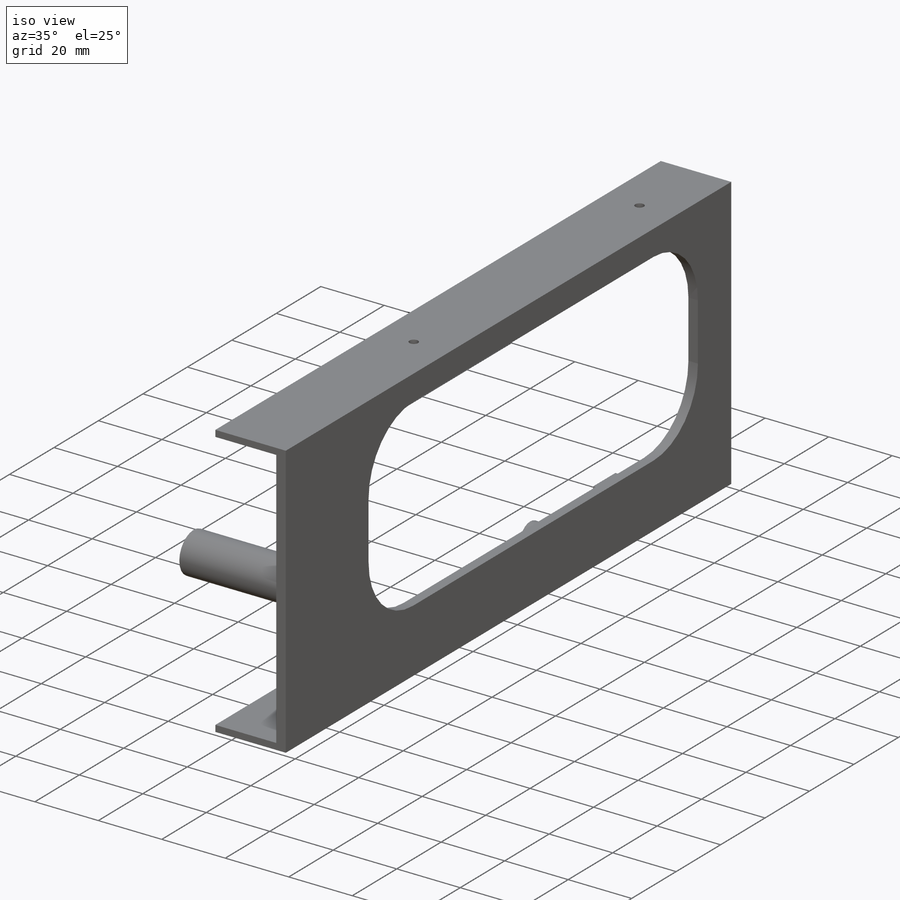
[diagram: iso view]
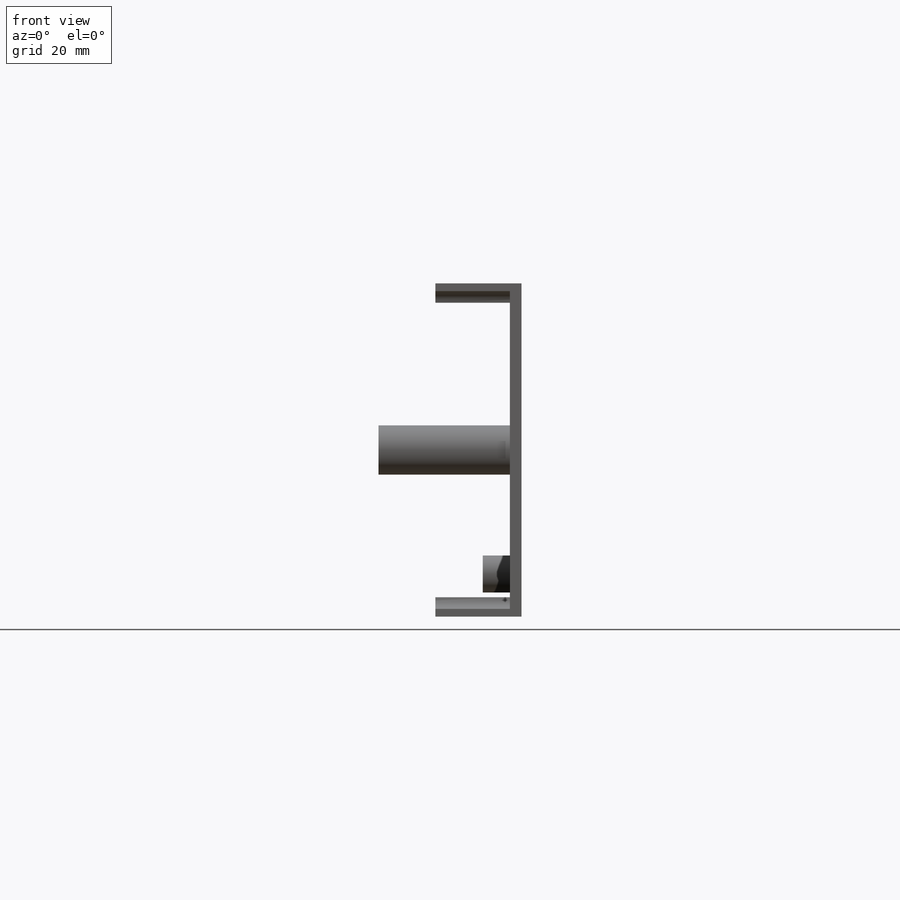
[diagram: front view]
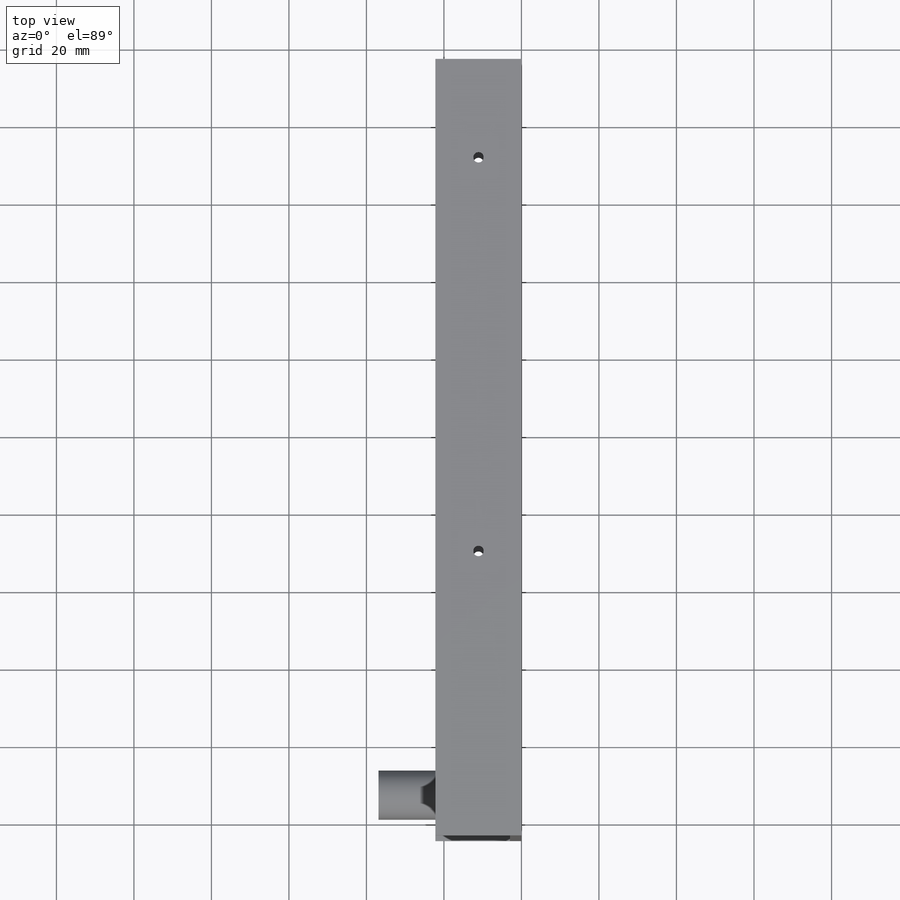
[diagram: top view]
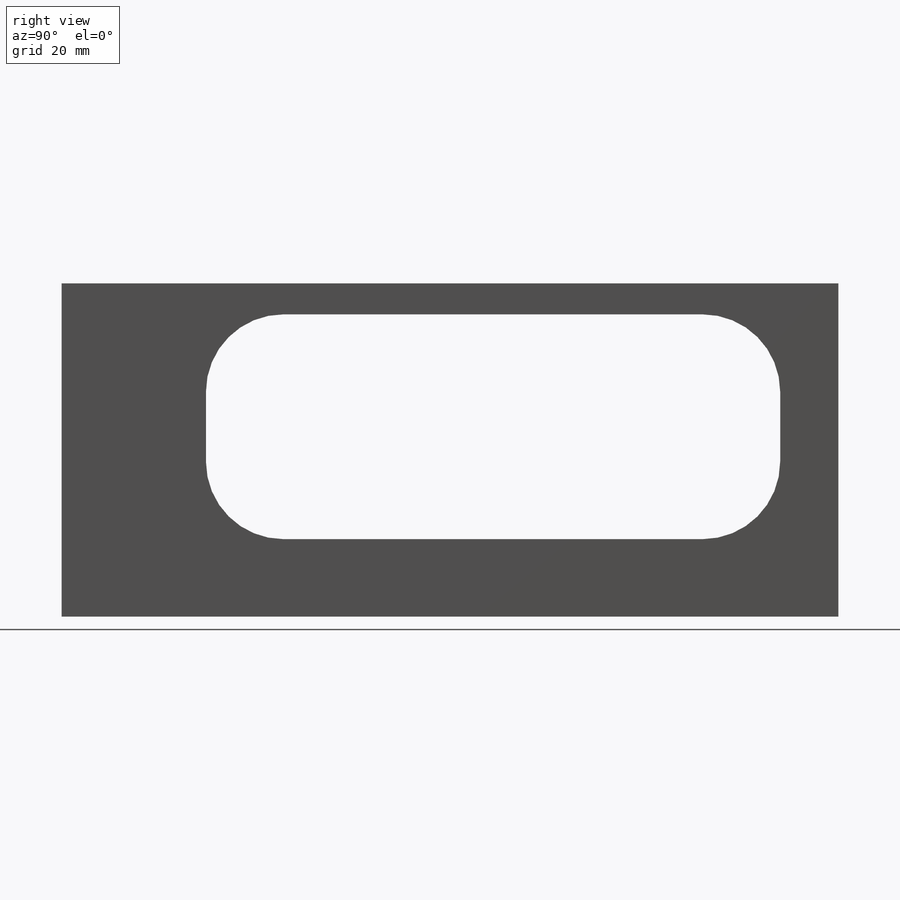
[diagram: right view]
SOLIDWORKS PART (.sldprt)
format: sldprt  version: not decoded by parser v0  size: 453,120 bytes
history: native  units: mm
features: sketch x11, extrude x5, mirror x3, thread x3, cut_extrude x2, hole x2, fillet x2, material x1 (+11 scaffold rows collapsed)
feature tree (40):
  scaffold x11  (default folders/planes/origin — collapsed)
  material  "6061-T6 (SS)"
  sketch  "Sketch1"  dims[c1.D5=3.1877mm c1.D7=3.683mm c1.D1=152.4mm c1.D2=86.0mm c1.D3=15.0mm c1.D4=15.0mm c1.D6=15.0mm c2.D7=15.0mm c2.D6=30.0mm c2.D4=100.0mm c2.D5=35.0mm]
  extrude  "Boss-Extrude1"  Depth=22.2mm
  sketch  "Sketch2"  dims[c1.D3=9.4996mm c1.D2=9.525mm c1.D1=12.0mm c2.D2=12.0mm c2.D1=2.0mm c2.D3=35.0mm]
  cut_extrude  "Cut-Extrude1"  Depth=3mm
  sketch  "Sketch5"  dims[D1=5.0mm D2=10.0mm D3=50.8mm]
  extrude  "Boss-Extrude2"  [1 undecoded]
  mirror  "Mirror2"
  mirror  "Mirror3"
  hole  "#6-32 Tapped Hole1"  Diameter=2.7051mm Depth=10.97mm
  sketch  "Sketch4"  dims[D1=101.6mm]
  sketch  "Sketch3"  dims[hole-wizard template sketch: 47 standard entries collapsed; hole parameters kept: c15.Tap Drill Depth=10.97mm c15.D3=~14.816244mm c15.Drill Angle=118.0deg]
  thread  "Hole Thread1"  Diameter=3mm  [1 undecoded]
  thread  "Hole Thread2"  Diameter=3mm  [1 undecoded]
  mirror  "Mirror1"
  fillet  "Fillet1"  Radius=3.175mm
  sketch  "Sketch7"  dims[D2=9.525mm D1=32.0mm]
  extrude  "Boss-Extrude3"  Depth=7mm
  sketch  "Sketch9"  dims[D1=0.0mm]
  extrude  "Boss-Extrude4"  Depth=48mm
  sketch  "Sketch10"  dims[D1=22.225mm D2=12.7mm]
  extrude  "Boss-Extrude5"  Depth=33.883761mm
  sketch  "Sketch11"  dims[D1=15.0mm D2=15.0mm D3=8.0mm]
  cut_extrude  "Cut-Extrude3"  [1 undecoded]
  fillet  "Fillet3"  Radius=20mm
  hole  "#10-24 Tapped Hole1"  Diameter=3.7973mm Depth=14.95mm
  sketch  "Sketch13"
  sketch  "Sketch12"  dims[hole-wizard template sketch: 50 standard entries collapsed; hole parameters above]
  thread  "Hole Thread3"  Diameter=9.65mm  [1 undecoded]
decode coverage: 22 of 28 modeling features carry decoded parameters
note: ~ marks probable driven/reference dimensions
note: 5 parameter values undecoded
note: suppression state not decoded; provenance and decode notes live in map.json
